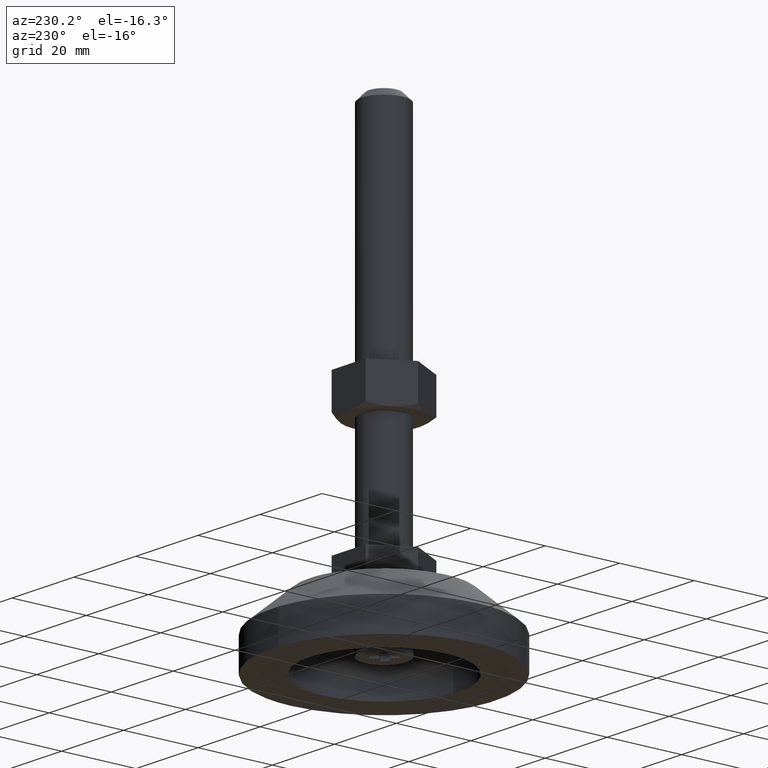
[diagram: clean part render]
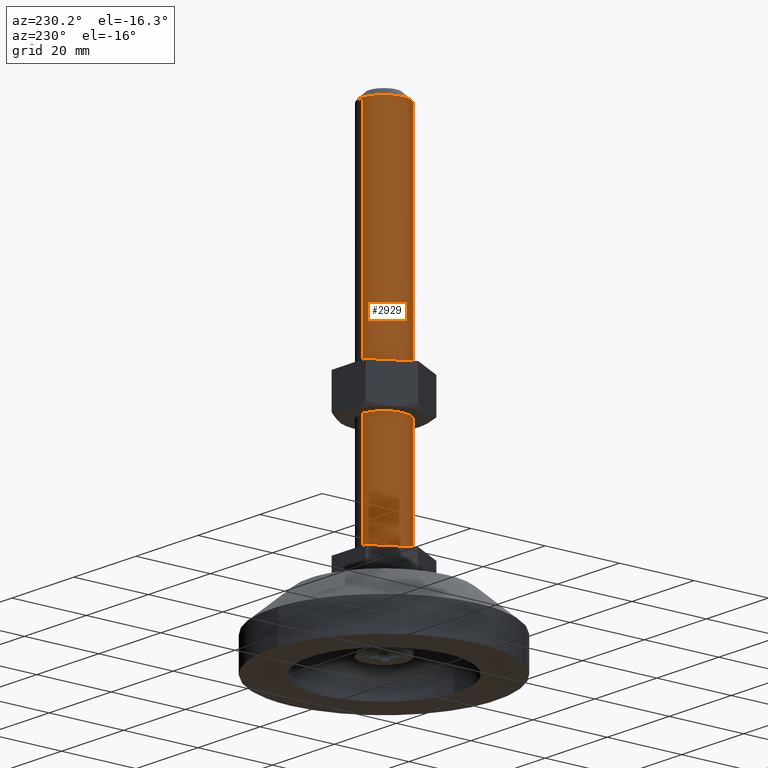
[diagram: same view with one face highlighted and labeled with its STEP entity id]
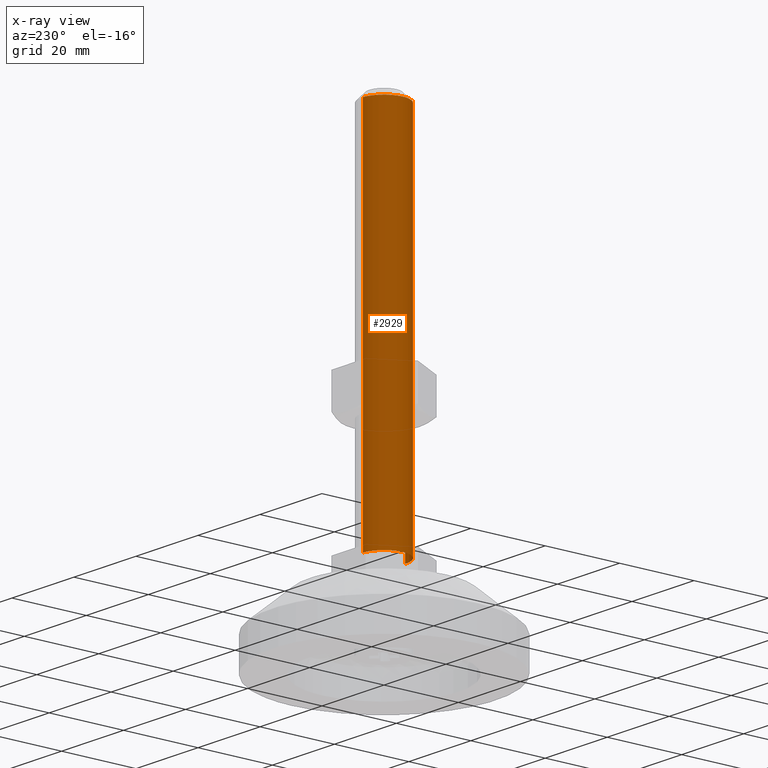
[diagram: x-ray of the same camera — body ghosted, the highlighted face saturated]
A machine part, auxiliary view. The second image highlights one B-rep face of the part: STEP entity #2929.
The next image is the same camera in x-ray: the body ghosted, the highlighted face saturated — about 0% of this face is hidden behind the body in this view.
In plain terms, the highlighted face is a freeform B-spline surface patch.
Its self-contained STEP definition (entity closure, byte-faithful):
#2744=CARTESIAN_POINT('',(-0.052359214489858,-5.999771538575880,122.999999999796100));
#2745=VERTEX_POINT('',#2744);
#2746=CARTESIAN_POINT('',(-6.0,0.0,123.0));
#2747=VERTEX_POINT('',#2746);
#2748=CARTESIAN_POINT('',(-0.052359214489858,-5.999771538575880,122.999999999796070));
#2749=CARTESIAN_POINT('',(-6.000000000000891,-5.947867262186899,122.999999999898080));
#2750=CARTESIAN_POINT('',(-6.0,0.0,123.0));
#2758=(BOUNDED_CURVE()B_SPLINE_CURVE(2,(#2748,#2749,#2750),.UNSPECIFIED.,.F.,.U.)B_SPLINE_CURVE_WITH_KNOTS((3,3),(0.251539894378961,0.500000000000000),.UNSPECIFIED.)CURVE()GEOMETRIC_REPRESENTATION_ITEM()RATIONAL_B_SPLINE_CURVE((0.996414027998638,0.708910879671694,1.0))REPRESENTATION_ITEM(''));
#2759=EDGE_CURVE('',#2745,#2747,#2758,.T.);
#2775=CARTESIAN_POINT('',(-0.366291237335024,5.988808790523502,123.0));
#2776=VERTEX_POINT('',#2775);
#2784=CARTESIAN_POINT('',(-6.0,0.0,123.0));
#2785=CARTESIAN_POINT('',(-6.0,5.644236401315308,123.000000000000010));
#2786=CARTESIAN_POINT('',(-0.366291237335024,5.988808790523503,122.999999999999970));
#2794=(BOUNDED_CURVE()B_SPLINE_CURVE(2,(#2784,#2785,#2786),.UNSPECIFIED.,.F.,.U.)B_SPLINE_CURVE_WITH_KNOTS((3,3),(0.500000000000000,0.739332962238341),.UNSPECIFIED.)CURVE()GEOMETRIC_REPRESENTATION_ITEM()RATIONAL_B_SPLINE_CURVE((1.0,0.719603993287415,0.976072041665429))REPRESENTATION_ITEM(''));
#2795=EDGE_CURVE('',#2747,#2776,#2794,.T.);
#2818=CARTESIAN_POINT('',(0.366291237335024,-5.988808790523502,123.0));
#2819=VERTEX_POINT('',#2818);
#2820=CARTESIAN_POINT('',(0.366291237335024,-5.988808790523502,123.0));
#2821=CARTESIAN_POINT('',(0.226934000038643,-5.997333014389936,122.999999999932000));
#2822=CARTESIAN_POINT('',(0.087255318113893,-6.000990573293034,122.999999999864100));
#2823=CARTESIAN_POINT('',(-0.052359214489858,-5.999771538575880,122.999999999796100));
#2824=B_SPLINE_CURVE_WITH_KNOTS('',3,(#2820,#2821,#2822,#2823),.UNSPECIFIED.,.F.,.U.,(4,4),(0.000000014431898,0.418884337697520),.UNSPECIFIED.);
#2825=EDGE_CURVE('',#2819,#2745,#2824,.T.);
#2862=CARTESIAN_POINT('',(0.366291237209142,-5.988808790531200,125.450000000000000));
#2863=CARTESIAN_POINT('',(-5.622517553322059,-6.355100027740342,125.450000000000030));
#2864=CARTESIAN_POINT('',(-5.988808790531200,-0.366291237209142,125.450000000000000));
#2865=CARTESIAN_POINT('',(-6.355100027740342,5.622517553322059,125.450000000000030));
#2866=CARTESIAN_POINT('',(-0.366291237209142,5.988808790531200,125.450000000000000));
#2867=CARTESIAN_POINT('',(0.366291237209142,-5.988808790531200,22.488750000000000));
#2868=CARTESIAN_POINT('',(-5.622517553322059,-6.355100027740342,22.488750000000000));
#2869=CARTESIAN_POINT('',(-5.988808790531200,-0.366291237209142,22.488750000000000));
#2870=CARTESIAN_POINT('',(-6.355100027740342,5.622517553322059,22.488750000000000));
#2871=CARTESIAN_POINT('',(-0.366291237209142,5.988808790531200,22.488750000000000));
#2879=(BOUNDED_SURFACE()B_SPLINE_SURFACE(2,1,((#2862,#2867),(#2863,#2868),(#2864,#2869),(#2865,#2870),(#2866,#2871)),.UNSPECIFIED.,.F.,.F.,.U.)B_SPLINE_SURFACE_WITH_KNOTS((3,2,3),(2,2),(0.0,9.941125496954278,19.882250993908560),(0.0,102.961250000000110),.UNSPECIFIED.)GEOMETRIC_REPRESENTATION_ITEM()RATIONAL_B_SPLINE_SURFACE(((1.0,1.0),(0.707106781186548,0.707106781186548),(1.0,1.0),(0.707106781186548,0.707106781186548),(1.0,1.0)))REPRESENTATION_ITEM('')SURFACE());
#2880=CARTESIAN_POINT('',(0.366291237335024,-5.988808790523502,25.000000000000011));
#2881=VERTEX_POINT('',#2880);
#2882=CARTESIAN_POINT('',(-6.0,0.0,25.0));
#2883=VERTEX_POINT('',#2882);
#2884=CARTESIAN_POINT('',(0.366291237335024,-5.988808790523503,25.000000000000004));
#2885=CARTESIAN_POINT('',(0.183316579854651,-6.0,25.000000000000004));
#2886=CARTESIAN_POINT('',(0.0,-6.0,25.0));
#2887=CARTESIAN_POINT('',(-6.0,-6.0,25.0));
#2888=CARTESIAN_POINT('',(-6.0,0.0,25.0));
#2896=(BOUNDED_CURVE()B_SPLINE_CURVE(2,(#2884,#2885,#2886,#2887,#2888),.UNSPECIFIED.,.F.,.U.)B_SPLINE_CURVE_WITH_KNOTS((3,2,3),(0.239332962238341,0.250000000000000,0.500000000000000),.UNSPECIFIED.)CURVE()GEOMETRIC_REPRESENTATION_ITEM()RATIONAL_B_SPLINE_CURVE((0.976072041665429,0.987502787899133,1.0,0.707106781186548,1.0))REPRESENTATION_ITEM(''));
#2897=EDGE_CURVE('',#2881,#2883,#2896,.T.);
#2898=ORIENTED_EDGE('',*,*,#2897,.F.);
#2899=CARTESIAN_POINT('',(0.366291237335024,-5.988808790523502,123.0));
#2900=CARTESIAN_POINT('',(0.366291237335024,-5.988808790523502,25.000000000000011));
#2901=QUASI_UNIFORM_CURVE('',1,(#2899,#2900),.UNSPECIFIED.,.F.,.U.);
#2902=EDGE_CURVE('',#2819,#2881,#2901,.T.);
#2903=ORIENTED_EDGE('',*,*,#2902,.F.);
#2904=ORIENTED_EDGE('',*,*,#2825,.T.);
#2905=ORIENTED_EDGE('',*,*,#2759,.T.);
#2906=ORIENTED_EDGE('',*,*,#2795,.T.);
#2907=CARTESIAN_POINT('',(-0.366291237335024,5.988808790523502,25.0));
#2908=VERTEX_POINT('',#2907);
#2909=CARTESIAN_POINT('',(-0.366291237335024,5.988808790523502,123.0));
#2910=CARTESIAN_POINT('',(-0.366291237335024,5.988808790523502,25.0));
#2911=QUASI_UNIFORM_CURVE('',1,(#2909,#2910),.UNSPECIFIED.,.F.,.U.);
#2912=EDGE_CURVE('',#2776,#2908,#2911,.T.);
#2913=ORIENTED_EDGE('',*,*,#2912,.T.);
#2914=CARTESIAN_POINT('',(-6.0,0.0,25.0));
#2915=CARTESIAN_POINT('',(-6.0,5.644236401315308,24.999999999999996));
#2916=CARTESIAN_POINT('',(-0.366291237335024,5.988808790523503,25.000000000000004));
#2924=(BOUNDED_CURVE()B_SPLINE_CURVE(2,(#2914,#2915,#2916),.UNSPECIFIED.,.F.,.U.)B_SPLINE_CURVE_WITH_KNOTS((3,3),(0.500000000000000,0.739332962238341),.UNSPECIFIED.)CURVE()GEOMETRIC_REPRESENTATION_ITEM()RATIONAL_B_SPLINE_CURVE((1.0,0.719603993287415,0.976072041665429))REPRESENTATION_ITEM(''));
#2925=EDGE_CURVE('',#2883,#2908,#2924,.T.);
#2926=ORIENTED_EDGE('',*,*,#2925,.F.);
#2927=EDGE_LOOP('',(#2898,#2903,#2904,#2905,#2906,#2913,#2926));
#2928=FACE_OUTER_BOUND('',#2927,.T.);
#2929=ADVANCED_FACE('',(#2928),#2879,.T.);